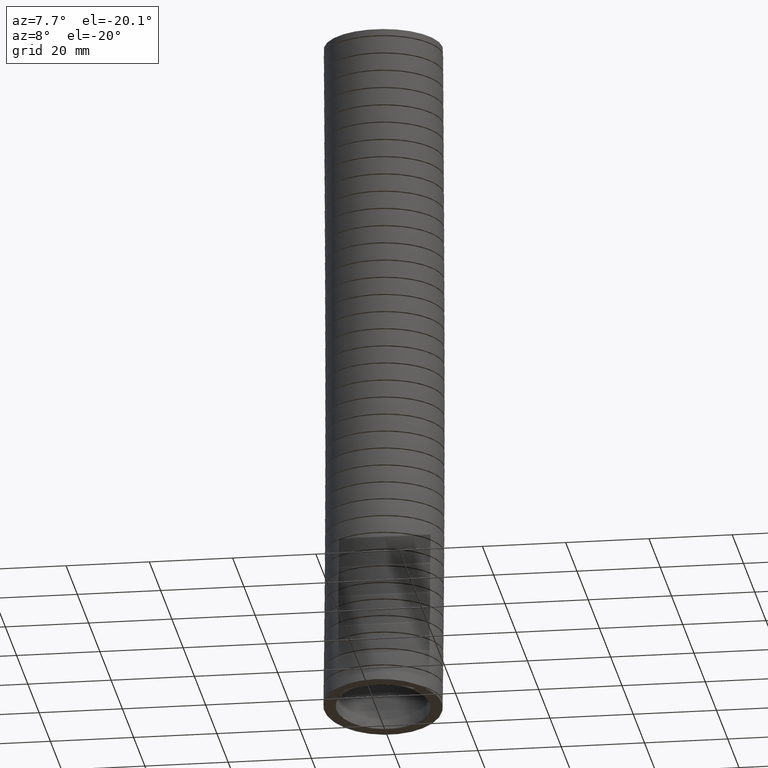
[diagram: clean part render]
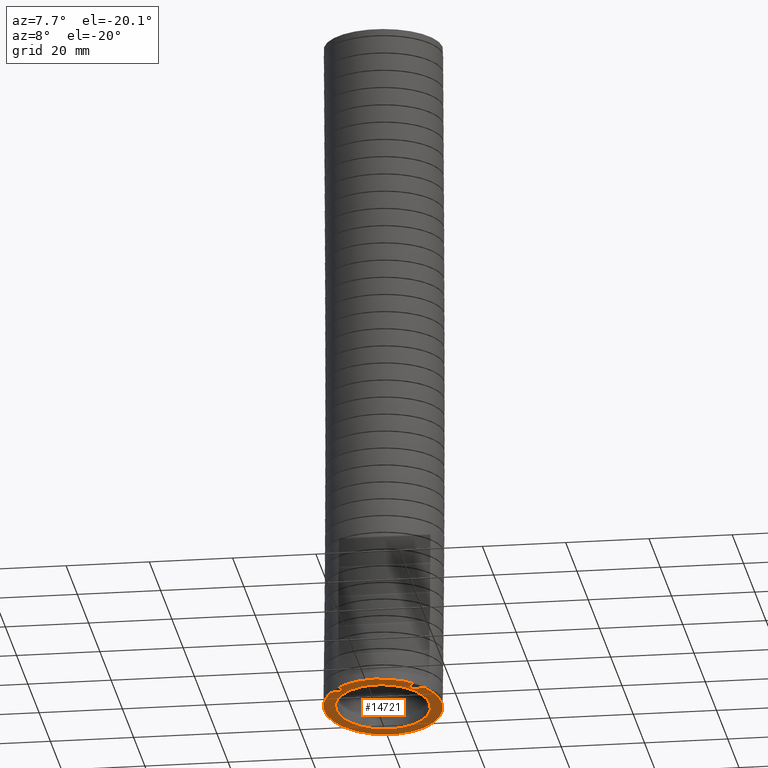
[diagram: same view with one face highlighted and labeled with its STEP entity id]
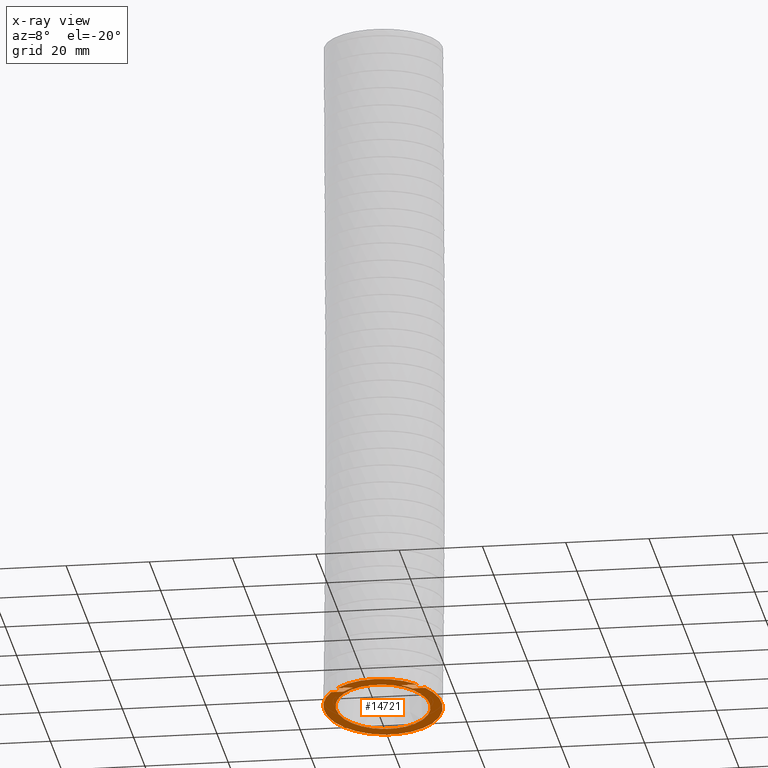
[diagram: x-ray of the same camera — body ghosted, the highlighted face saturated]
A machine part, auxiliary view. The second image highlights one B-rep face of the part: STEP entity #14721.
The next image is the same camera in x-ray: the body ghosted, the highlighted face saturated — about 0% of this face is hidden behind the body in this view.
In plain terms, the highlighted planar face has unit normal (0, 0.1357, 0.9908).
Its self-contained STEP definition (entity closure, byte-faithful):
#5255 = CARTESIAN_POINT ( 'NONE',  ( -0.4453197081382561700, -0.3664054502422819400, -6.523937753082713600 ) ) ;
#5388 = CARTESIAN_POINT ( 'NONE',  ( -0.5600000000000000500, -0.02999999999999993300, -6.569999999999999400 ) ) ;
#5579 = DIRECTION ( 'NONE',  ( 0.0000000000000000000, 0.1356590045631733400, 0.9907555876607150300 ) ) ;
#5583 = CARTESIAN_POINT ( 'NONE',  ( 0.5600000000000000500, -0.02999999999999999900, -6.569999999999999400 ) ) ;
#5620 = DIRECTION ( 'NONE',  ( 1.000000000000000000, 0.0000000000000000000, 0.0000000000000000000 ) ) ;
#5621 = AXIS2_PLACEMENT_3D ( 'NONE', #5628, #5579, #5620 ) ;
#5622 = CIRCLE ( 'NONE', #5621, 0.5599999999999999400 ) ;
#5628 = CARTESIAN_POINT ( 'NONE',  ( 0.0000000000000000000, -0.02999999999999998800, -6.569999999999999400 ) ) ;
#5646 = AXIS2_PLACEMENT_3D ( 'NONE', #5752, #5751, #5750 ) ;
#5678 = CIRCLE ( 'NONE', #5646, 0.5599999999999999400 ) ;
#5737 = CARTESIAN_POINT ( 'NONE',  ( -0.3779118285459072100, -0.4394382423707807700, -6.513937753082713800 ) ) ;
#5749 = CARTESIAN_POINT ( 'NONE',  ( 0.3779118285780800300, -0.4394382423412679900, -6.513937753082713800 ) ) ;
#5750 = DIRECTION ( 'NONE',  ( 1.000000000000000000, 0.0000000000000000000, 0.0000000000000000000 ) ) ;
#5751 = DIRECTION ( 'NONE',  ( 0.0000000000000000000, 0.1356590045631733400, 0.9907555876607150300 ) ) ;
#5752 = CARTESIAN_POINT ( 'NONE',  ( 0.0000000000000000000, -0.02999999999999998800, -6.569999999999999400 ) ) ;
#8307 = VERTEX_POINT ( 'NONE', #5255 ) ;
#8328 = VERTEX_POINT ( 'NONE', #5388 ) ;
#8370 = VERTEX_POINT ( 'NONE', #5583 ) ;
#8377 = EDGE_CURVE ( 'NONE', #8328, #8307, #5622, .T. ) ;
#8388 = EDGE_CURVE ( 'NONE', #8394, #8390, #5678, .T. ) ;
#8390 = VERTEX_POINT ( 'NONE', #5749 ) ;
#8394 = VERTEX_POINT ( 'NONE', #5737 ) ;
#11333 = VERTEX_POINT ( 'NONE', #13916 ) ;
#11338 = VERTEX_POINT ( 'NONE', #13913 ) ;
#11366 = EDGE_CURVE ( 'NONE', #11333, #11338, #14125, .T. ) ;
#13913 = CARTESIAN_POINT ( 'NONE',  ( -0.4450000000000000100, -0.02999999999999994300, -6.569999999999999400 ) ) ;
#13916 = CARTESIAN_POINT ( 'NONE',  ( 0.4449999999999999500, -0.02999999999999998800, -6.569999999999999400 ) ) ;
#13943 = EDGE_CURVE ( 'NONE', #11338, #11333, #16888, .T. ) ;
#13994 = EDGE_LOOP ( 'NONE', ( #15504, #15303, #15467, #15500, #15083, #15094, #15104, #16062, #16154, #16157 ) ) ;
#14109 = EDGE_LOOP ( 'NONE', ( #14294, #14173 ) ) ;
#14122 = DIRECTION ( 'NONE',  ( 1.000000000000000000, 0.0000000000000000000, 0.0000000000000000000 ) ) ;
#14123 = DIRECTION ( 'NONE',  ( 0.0000000000000000000, 0.1356590045631733400, 0.9907555876607150300 ) ) ;
#14124 = AXIS2_PLACEMENT_3D ( 'NONE', #14133, #14123, #14122 ) ;
#14125 = CIRCLE ( 'NONE', #14124, 0.4449999999999999500 ) ;
#14133 = CARTESIAN_POINT ( 'NONE',  ( 0.0000000000000000000, -0.02999999999999998800, -6.569999999999999400 ) ) ;
#14173 = ORIENTED_EDGE ( 'NONE', *, *, #13943, .T. ) ;
#14294 = ORIENTED_EDGE ( 'NONE', *, *, #11366, .T. ) ;
#14671 = VERTEX_POINT ( 'NONE', #16996 ) ;
#14721 = ADVANCED_FACE ( 'NONE', ( #16995, #16989 ), #17032, .F. ) ;
#14757 = EDGE_CURVE ( 'NONE', #14671, #8370, #17027, .T. ) ;
#15083 = ORIENTED_EDGE ( 'NONE', *, *, #21001, .F. ) ;
#15094 = ORIENTED_EDGE ( 'NONE', *, *, #14757, .F. ) ;
#15104 = ORIENTED_EDGE ( 'NONE', *, *, #16434, .F. ) ;
#15186 = VERTEX_POINT ( 'NONE', #17021 ) ;
#15303 = ORIENTED_EDGE ( 'NONE', *, *, #15356, .F. ) ;
#15356 = EDGE_CURVE ( 'NONE', #15407, #15532, #17108, .T. ) ;
#15407 = VERTEX_POINT ( 'NONE', #17106 ) ;
#15443 = EDGE_CURVE ( 'NONE', #8307, #15407, #17123, .T. ) ;
#15467 = ORIENTED_EDGE ( 'NONE', *, *, #15443, .F. ) ;
#15500 = ORIENTED_EDGE ( 'NONE', *, *, #8377, .F. ) ;
#15504 = ORIENTED_EDGE ( 'NONE', *, *, #15512, .F. ) ;
#15512 = EDGE_CURVE ( 'NONE', #15532, #8394, #17119, .T. ) ;
#15532 = VERTEX_POINT ( 'NONE', #17181 ) ;
#16062 = ORIENTED_EDGE ( 'NONE', *, *, #16091, .F. ) ;
#16091 = EDGE_CURVE ( 'NONE', #16130, #15186, #17202, .T. ) ;
#16130 = VERTEX_POINT ( 'NONE', #17205 ) ;
#16154 = ORIENTED_EDGE ( 'NONE', *, *, #16290, .F. ) ;
#16157 = ORIENTED_EDGE ( 'NONE', *, *, #8388, .F. ) ;
#16290 = EDGE_CURVE ( 'NONE', #8390, #16130, #17226, .T. ) ;
#16434 = EDGE_CURVE ( 'NONE', #15186, #14671, #17329, .T. ) ;
#16888 = CIRCLE ( 'NONE', #16907, 0.4449999999999999500 ) ;
#16904 = DIRECTION ( 'NONE',  ( 1.000000000000000000, 0.0000000000000000000, 0.0000000000000000000 ) ) ;
#16905 = DIRECTION ( 'NONE',  ( 0.0000000000000000000, 0.1356590045631733400, 0.9907555876607150300 ) ) ;
#16906 = CARTESIAN_POINT ( 'NONE',  ( 0.0000000000000000000, -0.02999999999999998800, -6.569999999999999400 ) ) ;
#16907 = AXIS2_PLACEMENT_3D ( 'NONE', #16906, #16905, #16904 ) ;
#16989 = FACE_OUTER_BOUND ( 'NONE', #13994, .T. ) ;
#16995 = FACE_BOUND ( 'NONE', #14109, .T. ) ;
#16996 = CARTESIAN_POINT ( 'NONE',  ( 0.4453197081157659300, -0.3664054502718707700, -6.523937753082713600 ) ) ;
#17021 = CARTESIAN_POINT ( 'NONE',  ( 0.3263742884790111800, -0.3664054502718706600, -6.523937753082713600 ) ) ;
#17023 = DIRECTION ( 'NONE',  ( 1.000000000000000000, 0.0000000000000000000, 0.0000000000000000000 ) ) ;
#17024 = DIRECTION ( 'NONE',  ( 0.0000000000000000000, 0.1356590045631733400, 0.9907555876607150300 ) ) ;
#17025 = CARTESIAN_POINT ( 'NONE',  ( 0.0000000000000000000, -0.02999999999999998800, -6.569999999999999400 ) ) ;
#17026 = AXIS2_PLACEMENT_3D ( 'NONE', #17025, #17024, #17023 ) ;
#17027 = CIRCLE ( 'NONE', #17026, 0.5599999999999999400 ) ;
#17028 = DIRECTION ( 'NONE',  ( 1.000000000000000000, 0.0000000000000000000, 0.0000000000000000000 ) ) ;
#17029 = DIRECTION ( 'NONE',  ( 0.0000000000000000000, 0.1356590045631733700, 0.9907555876607151400 ) ) ;
#17030 = CARTESIAN_POINT ( 'NONE',  ( 0.0000000000000000000, -0.02999999999999998800, -6.569999999999999400 ) ) ;
#17031 = AXIS2_PLACEMENT_3D ( 'NONE', #17030, #17029, #17028 ) ;
#17032 = PLANE ( 'NONE',  #17031 ) ;
#17101 = CARTESIAN_POINT ( 'NONE',  ( -0.2275673105030089300, -0.4394382423707796600, -6.513937753082713800 ) ) ;
#17102 = CARTESIAN_POINT ( 'NONE',  ( -0.2636086035955599300, -0.4194938141074417400, -6.516668639810462500 ) ) ;
#17103 = CARTESIAN_POINT ( 'NONE',  ( -0.2967337270190854600, -0.3950095084258266600, -6.520021148317662000 ) ) ;
#17104 = CARTESIAN_POINT ( 'NONE',  ( -0.3263742884790111800, -0.3664054502718706600, -6.523937753082713600 ) ) ;
#17106 = CARTESIAN_POINT ( 'NONE',  ( -0.3263742884790111800, -0.3664054502718706600, -6.523937753082713600 ) ) ;
#17108 =( BOUNDED_CURVE ( )  B_SPLINE_CURVE ( 3, ( #17104, #17103, #17102, #17101 ),
 .UNSPECIFIED., .F., .T. ) 
 B_SPLINE_CURVE_WITH_KNOTS ( ( 4, 4 ),
 ( 5.515580957494699500, 5.777752968323218500 ),
 .UNSPECIFIED. ) 
 CURVE ( )  GEOMETRIC_REPRESENTATION_ITEM ( )  RATIONAL_B_SPLINE_CURVE ( ( 1.000000000000000000, 0.9942803504225767900, 0.9942803504225767900, 1.000000000000000000 ) ) 
 REPRESENTATION_ITEM ( '' )  );
#17119 = LINE ( 'NONE', #17184, #17183 ) ;
#17120 = DIRECTION ( 'NONE',  ( 1.000000000000000000, 0.0000000000000000000, 0.0000000000000000000 ) ) ;
#17121 = VECTOR ( 'NONE', #17120, 39.37007874015748100 ) ;
#17122 = CARTESIAN_POINT ( 'NONE',  ( 0.0000000000000000000, -0.3664054502718706600, -6.523937753082713600 ) ) ;
#17123 = LINE ( 'NONE', #17122, #17121 ) ;
#17181 = CARTESIAN_POINT ( 'NONE',  ( -0.2275673105030089300, -0.4394382423707796600, -6.513937753082713800 ) ) ;
#17182 = DIRECTION ( 'NONE',  ( -1.000000000000000000, 0.0000000000000000000, 0.0000000000000000000 ) ) ;
#17183 = VECTOR ( 'NONE', #17182, 39.37007874015748100 ) ;
#17184 = CARTESIAN_POINT ( 'NONE',  ( 0.0000000000000000000, -0.4394382423707806100, -6.513937753082713800 ) ) ;
#17197 = CARTESIAN_POINT ( 'NONE',  ( 0.3263742884790111800, -0.3664054502718706600, -6.523937753082713600 ) ) ;
#17198 = CARTESIAN_POINT ( 'NONE',  ( 0.2967337270190854000, -0.3950095084258269400, -6.520021148317662000 ) ) ;
#17199 = CARTESIAN_POINT ( 'NONE',  ( 0.2636086035955598200, -0.4194938141074419100, -6.516668639810462500 ) ) ;
#17200 = CARTESIAN_POINT ( 'NONE',  ( 0.2275673105030089300, -0.4394382423707796600, -6.513937753082713800 ) ) ;
#17202 =( BOUNDED_CURVE ( )  B_SPLINE_CURVE ( 3, ( #17200, #17199, #17198, #17197 ),
 .UNSPECIFIED., .F., .T. ) 
 B_SPLINE_CURVE_WITH_KNOTS ( ( 4, 4 ),
 ( 0.5054323388563675100, 0.7676043496848868900 ),
 .UNSPECIFIED. ) 
 CURVE ( )  GEOMETRIC_REPRESENTATION_ITEM ( )  RATIONAL_B_SPLINE_CURVE ( ( 1.000000000000000000, 0.9942803504225766800, 0.9942803504225766800, 1.000000000000000000 ) ) 
 REPRESENTATION_ITEM ( '' )  );
#17205 = CARTESIAN_POINT ( 'NONE',  ( 0.2275673105030089300, -0.4394382423707796600, -6.513937753082713800 ) ) ;
#17223 = DIRECTION ( 'NONE',  ( -1.000000000000000000, 0.0000000000000000000, 0.0000000000000000000 ) ) ;
#17224 = VECTOR ( 'NONE', #17223, 39.37007874015748100 ) ;
#17225 = CARTESIAN_POINT ( 'NONE',  ( 0.0000000000000000000, -0.4394382423707806100, -6.513937753082713800 ) ) ;
#17226 = LINE ( 'NONE', #17225, #17224 ) ;
#17326 = DIRECTION ( 'NONE',  ( 1.000000000000000000, 0.0000000000000000000, 0.0000000000000000000 ) ) ;
#17327 = VECTOR ( 'NONE', #17326, 39.37007874015748100 ) ;
#17328 = CARTESIAN_POINT ( 'NONE',  ( 0.0000000000000000000, -0.3664054502718706600, -6.523937753082713600 ) ) ;
#17329 = LINE ( 'NONE', #17328, #17327 ) ;
#20093 = CIRCLE ( 'NONE', #20113, 0.5599999999999999400 ) ;
#20110 = DIRECTION ( 'NONE',  ( 1.000000000000000000, 0.0000000000000000000, 0.0000000000000000000 ) ) ;
#20111 = DIRECTION ( 'NONE',  ( 0.0000000000000000000, 0.1356590045631733400, 0.9907555876607150300 ) ) ;
#20112 = CARTESIAN_POINT ( 'NONE',  ( 0.0000000000000000000, -0.02999999999999998800, -6.569999999999999400 ) ) ;
#20113 = AXIS2_PLACEMENT_3D ( 'NONE', #20112, #20111, #20110 ) ;
#21001 = EDGE_CURVE ( 'NONE', #8370, #8328, #20093, .T. ) ;